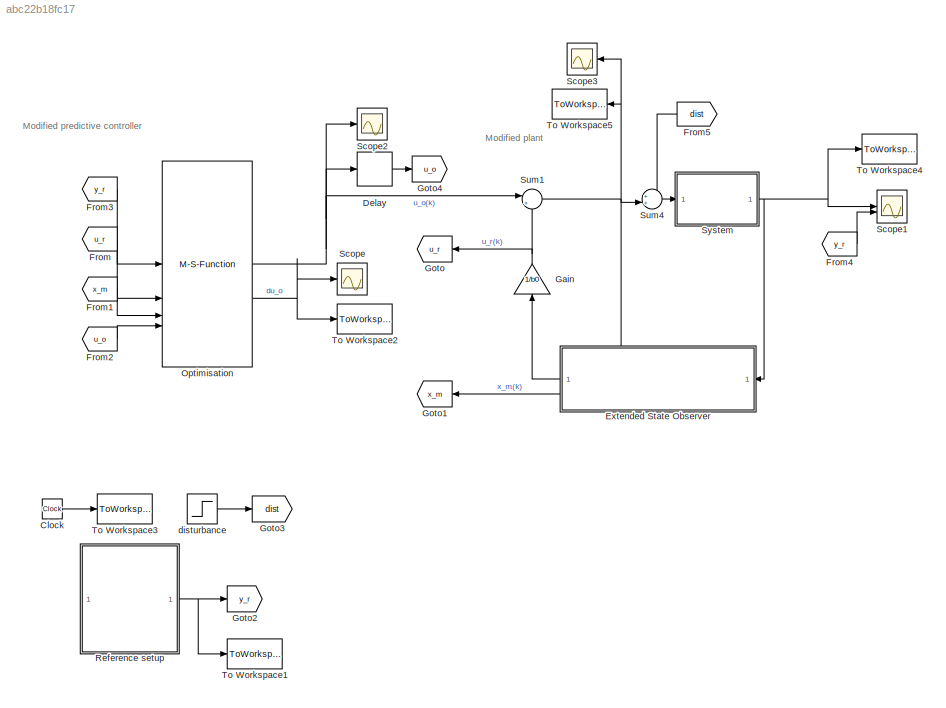
MODEL slx_abc22b18fc17
KIND model
CONFIG AbsTol = auto
CONFIG EnableMultiTasking = off
CONFIG FixedStep = auto
CONFIG MaxStep = auto
CONFIG MinStep = auto
CONFIG RelTol = 1e-3
CONFIG SampleTimeConstraint = Unconstrained
CONFIG SolverName = VariableStepAuto
CONFIG StartTime = 0.0
CONFIG StopTime = Tsim
BLOCK [Clock] Clock
BLOCK [Delay] Delay
  DelayLength = 1
  InputPortMap = u0
  SampleTime = Ts
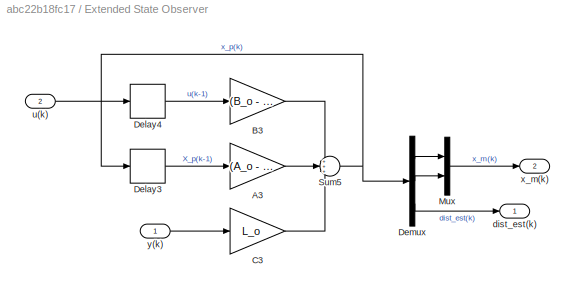
BLOCK [SubSystem] Extended State Observer
  PortSchema = {"entries":[{"content":{"sides":[{"content":{"connectorIds":["In1"]},"type":"ConnectorPlacement.EquallySpacedRectSide","uuid":"cd176947-fcfb-4df2-a5a8-2468070b6871"},{"content":{"connectorIds":["Out1","Out2"],"side":"RIGHT"},"type":"ConnectorPlacement.EquallySpacedRectSide","uuid":"6b898551-d171-49d4-aa03-7a53cde05bfa"},{"content":{"connectorIds":["In2"],"side":"TOP"},"type":"ConnectorPlacement.Eq...<+252ch>
BLOCK [Gain] Extended State Observer/A3
  Gain = (A_o - L_o*C_o*A_o)
  Multiplication = Matrix(K*u)
BLOCK [Gain] Extended State Observer/B3
  Gain = (B_o - L_o*C_o*B_o)
  Multiplication = Matrix(K*u)
BLOCK [Gain] Extended State Observer/C3
  Gain = L_o
  Multiplication = Matrix(K*u)
BLOCK [Delay] Extended State Observer/Delay3
  DelayLength = 1
  InputPortMap = u0
  SampleTime = Ts
BLOCK [Delay] Extended State Observer/Delay4
  DelayLength = 1
  InputPortMap = u0
  SampleTime = Ts
BLOCK [Demux] Extended State Observer/Demux
  Outputs = 3
BLOCK [Mux] Extended State Observer/Mux
  DisplayOption = bar
  Inputs = 2
BLOCK [Sum] Extended State Observer/Sum5
  Inputs = +++
BLOCK [Outport] Extended State Observer/dist_est(k)
BLOCK [Inport] Extended State Observer/u(k)
  Port = 2
BLOCK [Outport] Extended State Observer/x_m(k)
  Port = 2
BLOCK [Inport] Extended State Observer/y(k)
BLOCK [From] From
  GotoTag = u_r
BLOCK [From] From1
  GotoTag = x_m
BLOCK [From] From2
  GotoTag = u_o
BLOCK [From] From3
  GotoTag = y_r
BLOCK [From] From4
  GotoTag = y_r
BLOCK [From] From5
  GotoTag = dist
  NameLocation = top
BLOCK [Gain] Gain
  Gain = 1/b0
  Multiplication = Matrix(K*u)
  NameLocation = right
BLOCK [Goto] Goto
  GotoTag = u_r
BLOCK [Goto] Goto1
  GotoTag = x_m
BLOCK [Goto] Goto2
  GotoTag = y_r
BLOCK [Goto] Goto3
  GotoTag = dist
BLOCK [Goto] Goto4
  GotoTag = u_o
BLOCK [M-S-Function] Optimisation
  FunctionName = Blanca2023_solver
  Parameters = N,Nu,P,V_B,G_eq,P_eq,V_B_eq,u_max,u_min,du_max,du_min,H_aug,n_eq,Ts,G,gamma
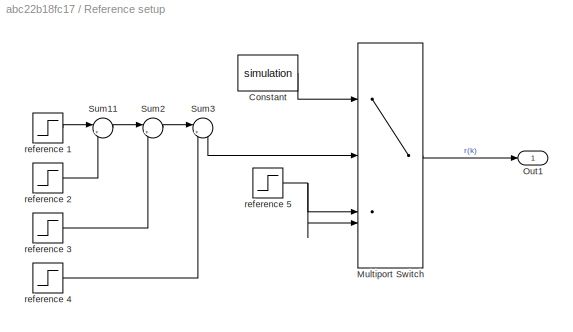
BLOCK [SubSystem] Reference setup
BLOCK [Constant] Reference setup/Constant
  Value = simulation
BLOCK [MultiPortSwitch] Reference setup/Multiport Switch
  InputSameDT = off
  SaturateOnIntegerOverflow = off
BLOCK [Outport] Reference setup/Out1
BLOCK [Sum] Reference setup/Sum11
  Inputs = |++
BLOCK [Sum] Reference setup/Sum2
  Inputs = |++
BLOCK [Sum] Reference setup/Sum3
  Inputs = |++
BLOCK [Step] Reference setup/reference 1
  After = 15
  SampleTime = Ts
  Time = 0
BLOCK [Step] Reference setup/reference 2
  After = 30
  SampleTime = Ts
  Time = 4
BLOCK [Step] Reference setup/reference 3
  After = -15
  SampleTime = Ts
  Time = 10
BLOCK [Step] Reference setup/reference 4
  After = -10
  SampleTime = Ts
  Time = 16
BLOCK [Step] Reference setup/reference 5
  SampleTime = Ts
  Time = 0
BLOCK [Scope] Scope
  Floating = off
  NumInputPorts = 1
  ScopeSpecificationString = Simulink.scopes.TimeScopeBlockCfg('CurrentConfiguration', extmgr.ConfigurationSet(extmgr.Configuration('Core','General UI',true),extmgr.Configuration('Core','Source UI',true),extmgr.Configuration('Sources','WiredSimulink',true),extmgr.Configuration('Visuals','Time Domain',true,'SerializedDisplays',{struct('MinYLimReal','-6.25','MaxYLimReal','6.25','YLabelReal','','MinYLimMag','0.00000','MaxYLimMag...<+1335ch>
BLOCK [Scope] Scope1
  Floating = off
  NumInputPorts = 2
  ScopeSpecificationString = Simulink.scopes.TimeScopeBlockCfg('CurrentConfiguration', extmgr.ConfigurationSet(extmgr.Configuration('Core','General UI',true),extmgr.Configuration('Core','Source UI',true),extmgr.Configuration('Sources','WiredSimulink',true,'DataLoggingVariableName','ScopeData1'),extmgr.Configuration('Visuals','Time Domain',true,'SerializedDisplays',{struct('MinYLimReal','-0.31234','MaxYLimReal','2.03339','YLab...<+1433ch>
BLOCK [Scope] Scope2
  Floating = off
  NumInputPorts = 1
  ScopeSpecificationString = Simulink.scopes.TimeScopeBlockCfg('CurrentConfiguration', extmgr.ConfigurationSet(extmgr.Configuration('Core','General UI',true),extmgr.Configuration('Core','Source UI',true),extmgr.Configuration('Sources','WiredSimulink',true,'DataLoggingVariableName','ScopeData2'),extmgr.Configuration('Visuals','Time Domain',true,'SerializedDisplays',{struct('MinYLimReal','-30.00000','MaxYLimReal','30.00000','YL...<+1400ch>
BLOCK [Scope] Scope3
  Floating = off
  NumInputPorts = 1
  ScopeSpecificationString = Simulink.scopes.TimeScopeBlockCfg('CurrentConfiguration', extmgr.ConfigurationSet(extmgr.Configuration('Core','General UI',true),extmgr.Configuration('Core','Source UI',true),extmgr.Configuration('Sources','WiredSimulink',true,'DataLoggingVariableName','ScopeData3'),extmgr.Configuration('Visuals','Time Domain',true,'SerializedDisplays',{struct('MinYLimReal','-0.39867','MaxYLimReal','1.49164','YLab...<+1393ch>
BLOCK [Sum] Sum1
  Inputs = |+-
BLOCK [Sum] Sum4
  Inputs = ++|
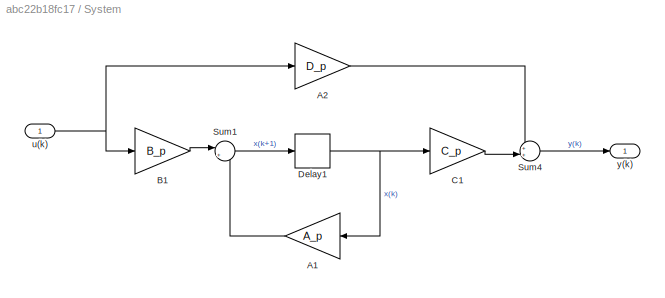
BLOCK [SubSystem] System
BLOCK [Gain] System/A1
  Gain = A_p
  Multiplication = Matrix(K*u)
BLOCK [Gain] System/A2
  Gain = D_p
  Multiplication = Matrix(K*u)
BLOCK [Gain] System/B1
  Gain = B_p
  Multiplication = Matrix(K*u)
BLOCK [Gain] System/C1
  Gain = C_p
  Multiplication = Matrix(K*u)
BLOCK [Delay] System/Delay1
  DelayLength = 1
  InputPortMap = u0
  SampleTime = Ts
BLOCK [Sum] System/Sum1
  Inputs = |++
BLOCK [Sum] System/Sum4
  Inputs = ++|
BLOCK [Inport] System/u(k)
BLOCK [Outport] System/y(k)
BLOCK [ToWorkspace] To Workspace1
  FixptAsFi = on
  MaxDataPoints = inf
  SampleTime = Ts
  Save2DSignal = 2-D array (concatenate along first dimension)
  VariableName = ref
BLOCK [ToWorkspace] To Workspace2
  FixptAsFi = on
  MaxDataPoints = inf
  SampleTime = Ts
  Save2DSignal = 2-D array (concatenate along first dimension)
  VariableName = du_o
BLOCK [ToWorkspace] To Workspace3
  FixptAsFi = on
  MaxDataPoints = inf
  SampleTime = Ts
  Save2DSignal = 2-D array (concatenate along first dimension)
  VariableName = t
BLOCK [ToWorkspace] To Workspace4
  FixptAsFi = on
  MaxDataPoints = inf
  SampleTime = Ts
  Save2DSignal = 2-D array (concatenate along first dimension)
  VariableName = y
BLOCK [ToWorkspace] To Workspace5
  FixptAsFi = on
  MaxDataPoints = inf
  SampleTime = Ts
  Save2DSignal = 2-D array (concatenate along first dimension)
  VariableName = u
BLOCK [Step] disturbance
  After = dist
  SampleTime = Ts
  Time = T_dist
ANNOTATION (root): Modified plant
ANNOTATION (root): Modified predictive controller
LINE Clock:1 -> To Workspace3:1
LINE Delay:1 -> Goto4:1
LINE Extended State Observer/A3:1 -> Extended State Observer/Sum5:2
LINE Extended State Observer/B3:1 -> Extended State Observer/Sum5:1
LINE Extended State Observer/C3:1 -> Extended State Observer/Sum5:3
LINE Extended State Observer/Delay3:1 -> Extended State Observer/A3:1
LINE Extended State Observer/Delay4:1 -> Extended State Observer/B3:1
LINE Extended State Observer/Demux:1 -> Extended State Observer/Mux:1
LINE Extended State Observer/Demux:2 -> Extended State Observer/Mux:2
LINE Extended State Observer/Demux:3 -> Extended State Observer/dist_est(k):1
LINE Extended State Observer/Mux:1 -> Extended State Observer/x_m(k):1
NET Extended State Observer/Sum5:1 -> Extended State Observer/Delay3:1, Extended State Observer/Demux:1
LINE Extended State Observer/u(k):1 -> Extended State Observer/Delay4:1
LINE Extended State Observer/y(k):1 -> Extended State Observer/C3:1
LINE Extended State Observer:1 -> Gain:1
LINE Extended State Observer:2 -> Goto1:1
LINE From1:1 -> Optimisation:3
LINE From2:1 -> Optimisation:4
LINE From3:1 -> Optimisation:1
LINE From4:1 -> Scope1:2
LINE From5:1 -> Sum4:1
LINE From:1 -> Optimisation:2
NET Gain:1 -> Goto:1, Sum1:2
NET Optimisation:1 -> Delay:1, Scope2:1, Sum1:1
NET Optimisation:2 -> Scope:1, To Workspace2:1
LINE Reference setup/Constant:1 -> Reference setup/Multiport Switch:1
LINE Reference setup/Multiport Switch:1 -> Reference setup/Out1:1
LINE Reference setup/Sum11:1 -> Reference setup/Sum2:1
LINE Reference setup/Sum2:1 -> Reference setup/Sum3:1
LINE Reference setup/Sum3:1 -> Reference setup/Multiport Switch:2
LINE Reference setup/reference 1:1 -> Reference setup/Sum11:1
LINE Reference setup/reference 2:1 -> Reference setup/Sum11:2
LINE Reference setup/reference 3:1 -> Reference setup/Sum2:2
LINE Reference setup/reference 4:1 -> Reference setup/Sum3:2
NET Reference setup/reference 5:1 -> Reference setup/Multiport Switch:3, Reference setup/Multiport Switch:4
NET Reference setup:1 -> Goto2:1, To Workspace1:1
NET Sum1:1 -> Extended State Observer:2, Scope3:1, Sum4:2, To Workspace5:1
LINE Sum4:1 -> System:1
LINE System/A1:1 -> System/Sum1:2
LINE System/A2:1 -> System/Sum4:1
LINE System/B1:1 -> System/Sum1:1
LINE System/C1:1 -> System/Sum4:2
NET System/Delay1:1 -> System/A1:1, System/C1:1
LINE System/Sum1:1 -> System/Delay1:1
LINE System/Sum4:1 -> System/y(k):1
NET System/u(k):1 -> System/A2:1, System/B1:1
NET System:1 -> Extended State Observer:1, Scope1:1, To Workspace4:1
LINE disturbance:1 -> Goto3:1
note: NET lines group one-source signal fan-out (src -> all destinations, sorted); 1:1 wires keep LINE
